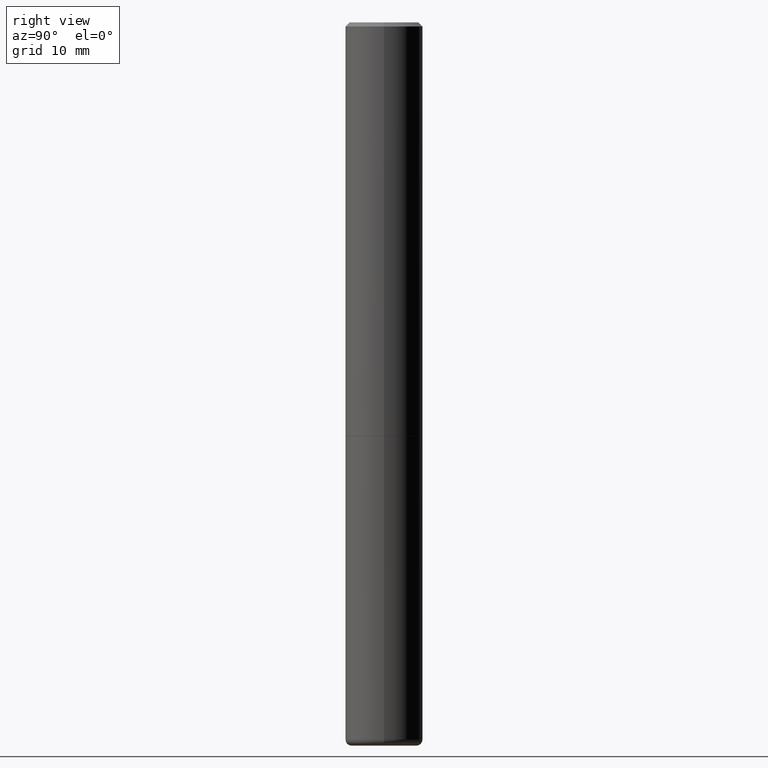
[diagram: clean part render]
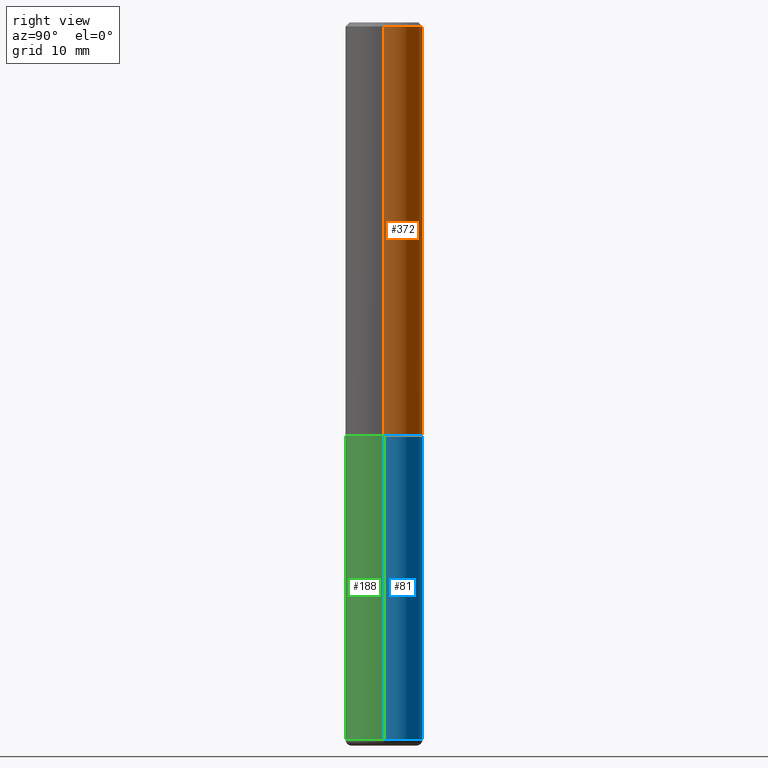
[diagram: same view with three faces highlighted in distinct colors, each labeled with its STEP entity id]
A machine part, right view with three faces highlighted in distinct colors.
Their STEP definitions:

[orange] entity #372 — the highlighted cylindrical surface (partial cylindrical patch) has radius 4.7625 mm, axis along (-0, 0, 1).
#4 = CARTESIAN_POINT ( 'NONE',  ( 0.1875000000000001388, -1.309305502066175994E-15, 9.142831454617388019E-30 ) ) ;
#15 = CARTESIAN_POINT ( 'NONE',  ( 0.1875000000000002498, -8.288776698413623955E-15, -1.998999999999999666 ) ) ;
#45 = CARTESIAN_POINT ( 'NONE',  ( 0.1875000000000000555, -1.356173001359025663E-15, -0.02000000000000003858 ) ) ;
#46 = EDGE_LOOP ( 'NONE', ( #273, #193, #187, #341 ) ) ;
#70 = CARTESIAN_POINT ( 'NONE',  ( 4.890937612370282792E-31, -6.982962677686303935E-17, -0.02000000000000003858 ) ) ;
#77 = EDGE_CURVE ( 'NONE', #119, #365, #89, .T. ) ;
#89 = LINE ( 'NONE', #4, #318 ) ;
#96 = DIRECTION ( 'NONE',  ( -2.445468806185136597E-29, 3.491481338843145583E-15, 1.000000000000000000 ) ) ;
#98 = VERTEX_POINT ( 'NONE', #230 ) ;
#105 = CARTESIAN_POINT ( 'NONE',  ( 0.000000000000000000, 0.000000000000000000, 0.000000000000000000 ) ) ;
#109 = FACE_OUTER_BOUND ( 'NONE', #46, .T. ) ;
#110 = LINE ( 'NONE', #242, #164 ) ;
#119 = VERTEX_POINT ( 'NONE', #15 ) ;
#133 = EDGE_CURVE ( 'NONE', #98, #194, #110, .T. ) ;
#164 = VECTOR ( 'NONE', #209, 39.37007874015748143 ) ;
#168 = CYLINDRICAL_SURFACE ( 'NONE', #276, 0.1875000000000001388 ) ;
#175 = CIRCLE ( 'NONE', #333, 0.1875000000000002498 ) ;
#177 = DIRECTION ( 'NONE',  ( 1.000000000000000000, -6.982962677686265922E-15, 0.000000000000000000 ) ) ;
#187 = ORIENTED_EDGE ( 'NONE', *, *, #411, .F. ) ;
#193 = ORIENTED_EDGE ( 'NONE', *, *, #133, .T. ) ;
#194 = VERTEX_POINT ( 'NONE', #356 ) ;
#204 = DIRECTION ( 'NONE',  ( 1.000000000000000000, -6.982962677686269077E-15, 0.000000000000000000 ) ) ;
#206 = AXIS2_PLACEMENT_3D ( 'NONE', #70, #241, #177 ) ;
#209 = DIRECTION ( 'NONE',  ( -2.445468806185136877E-29, 3.491481338843145188E-15, 1.000000000000000000 ) ) ;
#221 = DIRECTION ( 'NONE',  ( -2.445468806185136877E-29, 3.491481338843145188E-15, 1.000000000000000000 ) ) ;
#230 = CARTESIAN_POINT ( 'NONE',  ( -0.1875000000000002220, -2.192382782011963935E-15, -1.998999999999999666 ) ) ;
#241 = DIRECTION ( 'NONE',  ( -2.445468806185136597E-29, 3.491481338843145583E-15, 1.000000000000000000 ) ) ;
#242 = CARTESIAN_POINT ( 'NONE',  ( -0.1875000000000001388, 1.332267629550188835E-15, -9.223003294227954997E-30 ) ) ;
#273 = ORIENTED_EDGE ( 'NONE', *, *, #309, .T. ) ;
#276 = AXIS2_PLACEMENT_3D ( 'NONE', #105, #371, #301 ) ;
#297 = CIRCLE ( 'NONE', #206, 0.1875000000000000555 ) ;
#301 = DIRECTION ( 'NONE',  ( 1.000000000000000000, -6.982962677686266711E-15, 4.876176775795936914E-29 ) ) ;
#309 = EDGE_CURVE ( 'NONE', #119, #98, #175, .T. ) ;
#318 = VECTOR ( 'NONE', #221, 39.37007874015748143 ) ;
#333 = AXIS2_PLACEMENT_3D ( 'NONE', #385, #96, #204 ) ;
#341 = ORIENTED_EDGE ( 'NONE', *, *, #77, .F. ) ;
#356 = CARTESIAN_POINT ( 'NONE',  ( -0.1875000000000000555, 1.239475875289312104E-15, -0.02000000000000003858 ) ) ;
#365 = VERTEX_POINT ( 'NONE', #45 ) ;
#371 = DIRECTION ( 'NONE',  ( -2.445468806185136597E-29, 3.491481338843145583E-15, 1.000000000000000000 ) ) ;
#372 = ADVANCED_FACE ( 'NONE', ( #109 ), #168, .T. ) ;
#385 = CARTESIAN_POINT ( 'NONE',  ( 4.888492143564087030E-29, -6.979471196347446580E-15, -1.998999999999999666 ) ) ;
#411 = EDGE_CURVE ( 'NONE', #365, #194, #297, .T. ) ;

[blue] entity #81 — the highlighted cylindrical surface (partial cylindrical patch) has radius 4.7625 mm, axis along (-0, 0, 1).
#21 = ORIENTED_EDGE ( 'NONE', *, *, #153, .F. ) ;
#28 = EDGE_CURVE ( 'NONE', #78, #401, #163, .T. ) ;
#36 = DIRECTION ( 'NONE',  ( 1.000000000000000000, -6.982962677686261189E-15, 0.000000000000000000 ) ) ;
#44 = CIRCLE ( 'NONE', #122, 0.1875000000000000278 ) ;
#55 = EDGE_CURVE ( 'NONE', #278, #378, #117, .T. ) ;
#62 = VECTOR ( 'NONE', #392, 39.37007874015748143 ) ;
#66 = CARTESIAN_POINT ( 'NONE',  ( 8.485776757462424574E-29, -1.211544024578571439E-14, -3.469999999999999751 ) ) ;
#72 = CARTESIAN_POINT ( 'NONE',  ( -0.1875000000000000278, 1.332267629550188046E-15, -9.223003294227947991E-30 ) ) ;
#78 = VERTEX_POINT ( 'NONE', #223 ) ;
#81 = ADVANCED_FACE ( 'NONE', ( #205 ), #100, .T. ) ;
#100 = CYLINDRICAL_SURFACE ( 'NONE', #218, 0.1875000000000000278 ) ;
#103 = DIRECTION ( 'NONE',  ( -2.445468806185136597E-29, 3.491481338843145583E-15, 1.000000000000000000 ) ) ;
#115 = ORIENTED_EDGE ( 'NONE', *, *, #55, .T. ) ;
#117 = LINE ( 'NONE', #72, #146 ) ;
#122 = AXIS2_PLACEMENT_3D ( 'NONE', #394, #103, #337 ) ;
#146 = VECTOR ( 'NONE', #170, 39.37007874015748143 ) ;
#153 = EDGE_CURVE ( 'NONE', #401, #378, #44, .T. ) ;
#157 = CARTESIAN_POINT ( 'NONE',  ( 0.000000000000000000, 0.000000000000000000, 0.000000000000000000 ) ) ;
#163 = LINE ( 'NONE', #363, #62 ) ;
#170 = DIRECTION ( 'NONE',  ( -2.445468806185136877E-29, 3.491481338843145188E-15, 1.000000000000000000 ) ) ;
#180 = CARTESIAN_POINT ( 'NONE',  ( 0.1875000000000000278, -8.292268179752465385E-15, -1.999999999999999778 ) ) ;
#190 = AXIS2_PLACEMENT_3D ( 'NONE', #66, #291, #36 ) ;
#205 = FACE_OUTER_BOUND ( 'NONE', #406, .T. ) ;
#210 = EDGE_CURVE ( 'NONE', #78, #278, #212, .T. ) ;
#212 = CIRCLE ( 'NONE', #190, 0.1875000000000000278 ) ;
#217 = ORIENTED_EDGE ( 'NONE', *, *, #210, .T. ) ;
#218 = AXIS2_PLACEMENT_3D ( 'NONE', #157, #412, #254 ) ;
#223 = CARTESIAN_POINT ( 'NONE',  ( 0.1874999999999998335, -1.342474574785188940E-14, -3.469999999999999751 ) ) ;
#236 = CARTESIAN_POINT ( 'NONE',  ( -0.1875000000000000278, -8.216933832185813748E-15, -1.999999999999999778 ) ) ;
#251 = ORIENTED_EDGE ( 'NONE', *, *, #28, .F. ) ;
#254 = DIRECTION ( 'NONE',  ( 1.000000000000000000, -6.982962677686265922E-15, 4.876176775795935793E-29 ) ) ;
#256 = CARTESIAN_POINT ( 'NONE',  ( -0.1874999999999998335, -1.078317261623552812E-14, -3.469999999999999751 ) ) ;
#278 = VERTEX_POINT ( 'NONE', #256 ) ;
#291 = DIRECTION ( 'NONE',  ( -2.445468806185136597E-29, 3.491481338843145583E-15, 1.000000000000000000 ) ) ;
#337 = DIRECTION ( 'NONE',  ( 1.000000000000000000, -6.982962677686266711E-15, 0.000000000000000000 ) ) ;
#363 = CARTESIAN_POINT ( 'NONE',  ( 0.1875000000000000278, -1.309305502066175008E-15, 9.142831454617381013E-30 ) ) ;
#378 = VERTEX_POINT ( 'NONE', #236 ) ;
#392 = DIRECTION ( 'NONE',  ( -2.445468806185136877E-29, 3.491481338843145188E-15, 1.000000000000000000 ) ) ;
#394 = CARTESIAN_POINT ( 'NONE',  ( 4.890937612370272633E-29, -6.982962677686290376E-15, -1.999999999999999778 ) ) ;
#401 = VERTEX_POINT ( 'NONE', #180 ) ;
#406 = EDGE_LOOP ( 'NONE', ( #217, #115, #21, #251 ) ) ;
#412 = DIRECTION ( 'NONE',  ( -2.445468806185136597E-29, 3.491481338843145583E-15, 1.000000000000000000 ) ) ;

[green] entity #188 — the highlighted cylindrical surface (partial cylindrical patch) has radius 4.7625 mm, axis along (-0, 0, 1).
#28 = EDGE_CURVE ( 'NONE', #78, #401, #163, .T. ) ;
#32 = AXIS2_PLACEMENT_3D ( 'NONE', #384, #93, #298 ) ;
#38 = CIRCLE ( 'NONE', #32, 0.1875000000000000278 ) ;
#51 = ORIENTED_EDGE ( 'NONE', *, *, #300, .T. ) ;
#55 = EDGE_CURVE ( 'NONE', #278, #378, #117, .T. ) ;
#62 = VECTOR ( 'NONE', #392, 39.37007874015748143 ) ;
#72 = CARTESIAN_POINT ( 'NONE',  ( -0.1875000000000000278, 1.332267629550188046E-15, -9.223003294227947991E-30 ) ) ;
#78 = VERTEX_POINT ( 'NONE', #223 ) ;
#92 = CYLINDRICAL_SURFACE ( 'NONE', #151, 0.1875000000000000278 ) ;
#93 = DIRECTION ( 'NONE',  ( -2.445468806185136597E-29, 3.491481338843145583E-15, 1.000000000000000000 ) ) ;
#117 = LINE ( 'NONE', #72, #146 ) ;
#128 = DIRECTION ( 'NONE',  ( 1.000000000000000000, -6.982962677686266711E-15, 0.000000000000000000 ) ) ;
#146 = VECTOR ( 'NONE', #170, 39.37007874015748143 ) ;
#147 = CIRCLE ( 'NONE', #357, 0.1875000000000000278 ) ;
#151 = AXIS2_PLACEMENT_3D ( 'NONE', #161, #224, #158 ) ;
#158 = DIRECTION ( 'NONE',  ( 1.000000000000000000, -6.982962677686265922E-15, 4.876176775795935793E-29 ) ) ;
#161 = CARTESIAN_POINT ( 'NONE',  ( 0.000000000000000000, 0.000000000000000000, 0.000000000000000000 ) ) ;
#162 = FACE_OUTER_BOUND ( 'NONE', #284, .T. ) ;
#163 = LINE ( 'NONE', #363, #62 ) ;
#170 = DIRECTION ( 'NONE',  ( -2.445468806185136877E-29, 3.491481338843145188E-15, 1.000000000000000000 ) ) ;
#180 = CARTESIAN_POINT ( 'NONE',  ( 0.1875000000000000278, -8.292268179752465385E-15, -1.999999999999999778 ) ) ;
#188 = ADVANCED_FACE ( 'NONE', ( #162 ), #92, .T. ) ;
#198 = CARTESIAN_POINT ( 'NONE',  ( 4.890937612370272633E-29, -6.982962677686290376E-15, -1.999999999999999778 ) ) ;
#223 = CARTESIAN_POINT ( 'NONE',  ( 0.1874999999999998335, -1.342474574785188940E-14, -3.469999999999999751 ) ) ;
#224 = DIRECTION ( 'NONE',  ( -2.445468806185136597E-29, 3.491481338843145583E-15, 1.000000000000000000 ) ) ;
#236 = CARTESIAN_POINT ( 'NONE',  ( -0.1875000000000000278, -8.216933832185813748E-15, -1.999999999999999778 ) ) ;
#250 = EDGE_CURVE ( 'NONE', #378, #401, #147, .T. ) ;
#256 = CARTESIAN_POINT ( 'NONE',  ( -0.1874999999999998335, -1.078317261623552812E-14, -3.469999999999999751 ) ) ;
#262 = ORIENTED_EDGE ( 'NONE', *, *, #55, .F. ) ;
#278 = VERTEX_POINT ( 'NONE', #256 ) ;
#284 = EDGE_LOOP ( 'NONE', ( #262, #51, #315, #302 ) ) ;
#298 = DIRECTION ( 'NONE',  ( 1.000000000000000000, -6.982962677686261189E-15, 0.000000000000000000 ) ) ;
#300 = EDGE_CURVE ( 'NONE', #278, #78, #38, .T. ) ;
#302 = ORIENTED_EDGE ( 'NONE', *, *, #250, .F. ) ;
#315 = ORIENTED_EDGE ( 'NONE', *, *, #28, .T. ) ;
#323 = DIRECTION ( 'NONE',  ( -2.445468806185136597E-29, 3.491481338843145583E-15, 1.000000000000000000 ) ) ;
#357 = AXIS2_PLACEMENT_3D ( 'NONE', #198, #323, #128 ) ;
#363 = CARTESIAN_POINT ( 'NONE',  ( 0.1875000000000000278, -1.309305502066175008E-15, 9.142831454617381013E-30 ) ) ;
#378 = VERTEX_POINT ( 'NONE', #236 ) ;
#384 = CARTESIAN_POINT ( 'NONE',  ( 8.485776757462424574E-29, -1.211544024578571439E-14, -3.469999999999999751 ) ) ;
#392 = DIRECTION ( 'NONE',  ( -2.445468806185136877E-29, 3.491481338843145188E-15, 1.000000000000000000 ) ) ;
#401 = VERTEX_POINT ( 'NONE', #180 ) ;